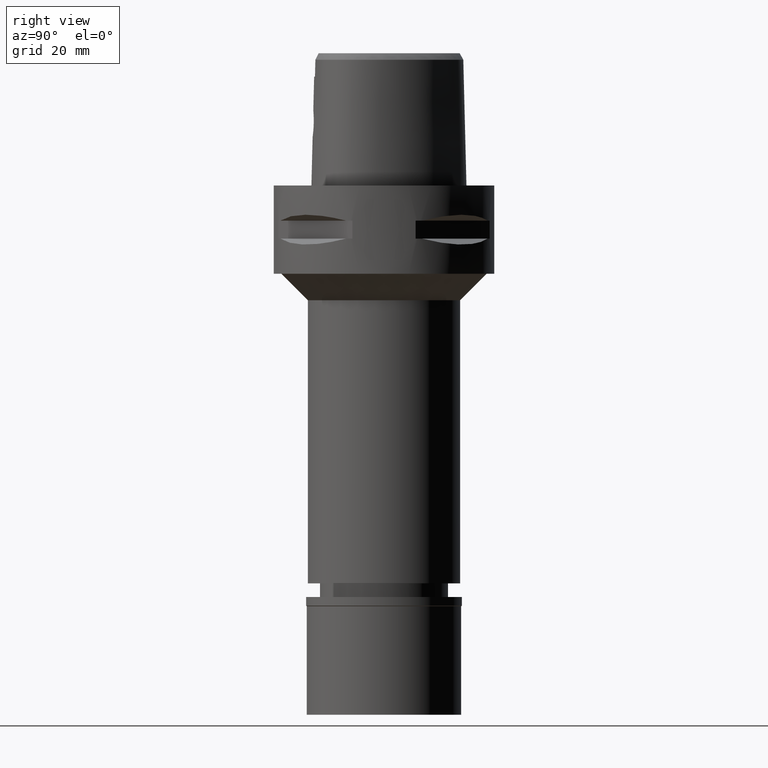
[diagram: clean part render]
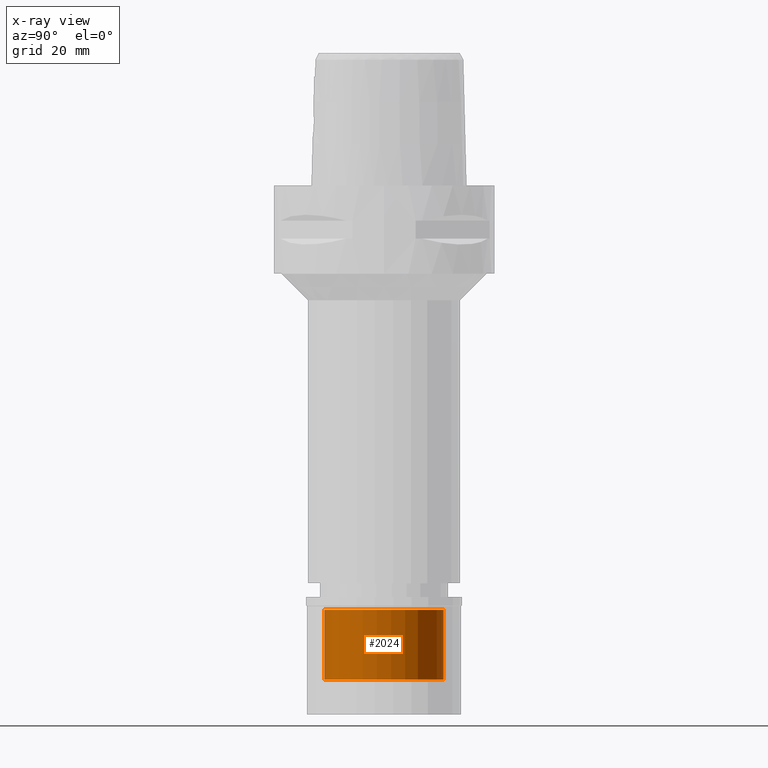
[diagram: x-ray — body ghosted, one internal face saturated and labeled with its STEP entity id]
A machine part, right view, then the same camera in x-ray: the body is ghosted and one INTERNAL B-rep face — a face not visible from any outside direction — is saturated and labeled: STEP entity #2024.
In plain terms, the highlighted cylindrical surface (partial cylindrical patch) has radius 13.5 mm, axis along (0, 0, -1).
Its self-contained STEP definition (entity closure, byte-faithful):
#180 = ORIENTED_EDGE ( 'NONE', *, *, #2091, .T. ) ;
#242 = DIRECTION ( 'NONE',  ( 0.0000000000000000000, 0.0000000000000000000, 1.000000000000000000 ) ) ;
#380 = CIRCLE ( 'NONE', #1068, 13.50000000000000000 ) ;
#388 = EDGE_CURVE ( 'NONE', #2355, #1370, #1969, .T. ) ;
#696 = CARTESIAN_POINT ( 'NONE',  ( 0.0000000000000000000, 0.0000000000000000000, 0.0000000000000000000 ) ) ;
#961 = DIRECTION ( 'NONE',  ( 0.0000000000000000000, 1.000000000000000000, 0.0000000000000000000 ) ) ;
#990 = CIRCLE ( 'NONE', #2017, 13.50000000000000000 ) ;
#1068 = AXIS2_PLACEMENT_3D ( 'NONE', #3784, #242, #1707 ) ;
#1115 = DIRECTION ( 'NONE',  ( 0.0000000000000000000, -1.000000000000000000, 0.0000000000000000000 ) ) ;
#1321 = CARTESIAN_POINT ( 'NONE',  ( 0.0000000000000000000, 0.0000000000000000000, -18.70000000000000284 ) ) ;
#1370 = VERTEX_POINT ( 'NONE', #2356 ) ;
#1412 = CYLINDRICAL_SURFACE ( 'NONE', #3991, 13.50000000000000000 ) ;
#1668 = EDGE_CURVE ( 'NONE', #2022, #2673, #1671, .T. ) ;
#1671 = LINE ( 'NONE', #2816, #2319 ) ;
#1707 = DIRECTION ( 'NONE',  ( 0.0000000000000000000, -1.000000000000000000, 0.0000000000000000000 ) ) ;
#1969 = LINE ( 'NONE', #2692, #4825 ) ;
#2017 = AXIS2_PLACEMENT_3D ( 'NONE', #1321, #4336, #961 ) ;
#2022 = VERTEX_POINT ( 'NONE', #4831 ) ;
#2024 = ADVANCED_FACE ( 'NONE', ( #4410 ), #1412, .F. ) ;
#2091 = EDGE_CURVE ( 'NONE', #1370, #2673, #380, .T. ) ;
#2110 = ORIENTED_EDGE ( 'NONE', *, *, #2300, .T. ) ;
#2300 = EDGE_CURVE ( 'NONE', #2022, #2355, #990, .T. ) ;
#2319 = VECTOR ( 'NONE', #2430, 1000.000000000000000 ) ;
#2355 = VERTEX_POINT ( 'NONE', #4290 ) ;
#2356 = CARTESIAN_POINT ( 'NONE',  ( 0.0000000000000000000, -13.50000000000000000, -2.899999999999999911 ) ) ;
#2430 = DIRECTION ( 'NONE',  ( 0.0000000000000000000, 0.0000000000000000000, 1.000000000000000000 ) ) ;
#2673 = VERTEX_POINT ( 'NONE', #2904 ) ;
#2692 = CARTESIAN_POINT ( 'NONE',  ( 0.0000000000000000000, -13.50000000000000000, -18.70000000000000284 ) ) ;
#2816 = CARTESIAN_POINT ( 'NONE',  ( 0.0000000000000000000, 13.50000000000000000, -18.70000000000000284 ) ) ;
#2904 = CARTESIAN_POINT ( 'NONE',  ( 0.0000000000000000000, 13.50000000000000000, -2.899999999999999911 ) ) ;
#3202 = ORIENTED_EDGE ( 'NONE', *, *, #388, .T. ) ;
#3364 = ORIENTED_EDGE ( 'NONE', *, *, #1668, .F. ) ;
#3784 = CARTESIAN_POINT ( 'NONE',  ( 0.0000000000000000000, 0.0000000000000000000, -2.899999999999999911 ) ) ;
#3847 = EDGE_LOOP ( 'NONE', ( #2110, #3202, #180, #3364 ) ) ;
#3991 = AXIS2_PLACEMENT_3D ( 'NONE', #696, #4462, #1115 ) ;
#4290 = CARTESIAN_POINT ( 'NONE',  ( 0.0000000000000000000, -13.50000000000000000, -18.70000000000000284 ) ) ;
#4336 = DIRECTION ( 'NONE',  ( 0.0000000000000000000, 0.0000000000000000000, -1.000000000000000000 ) ) ;
#4410 = FACE_OUTER_BOUND ( 'NONE', #3847, .T. ) ;
#4462 = DIRECTION ( 'NONE',  ( 0.0000000000000000000, 0.0000000000000000000, -1.000000000000000000 ) ) ;
#4472 = DIRECTION ( 'NONE',  ( 0.0000000000000000000, 0.0000000000000000000, 1.000000000000000000 ) ) ;
#4825 = VECTOR ( 'NONE', #4472, 1000.000000000000000 ) ;
#4831 = CARTESIAN_POINT ( 'NONE',  ( 0.0000000000000000000, 13.50000000000000000, -18.70000000000000284 ) ) ;